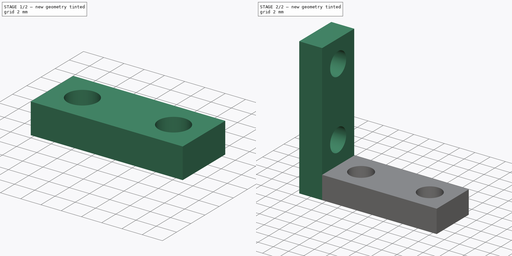
[diagram: build sequence overview — one tinted view per stage of 2, left to right]
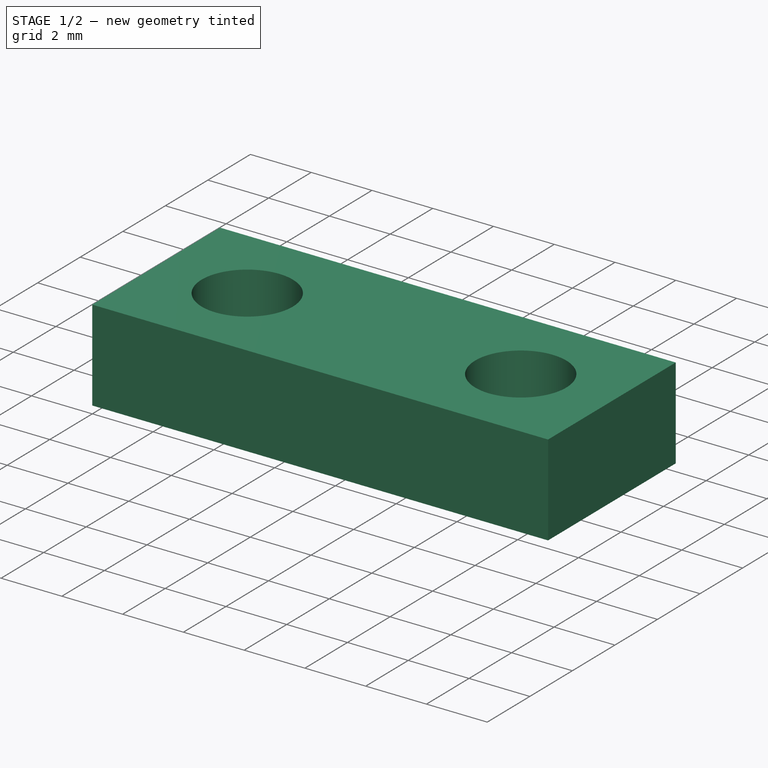
[diagram: stage 1 of 2 — iso view after this stage's code; geometry added in this stage tinted green]
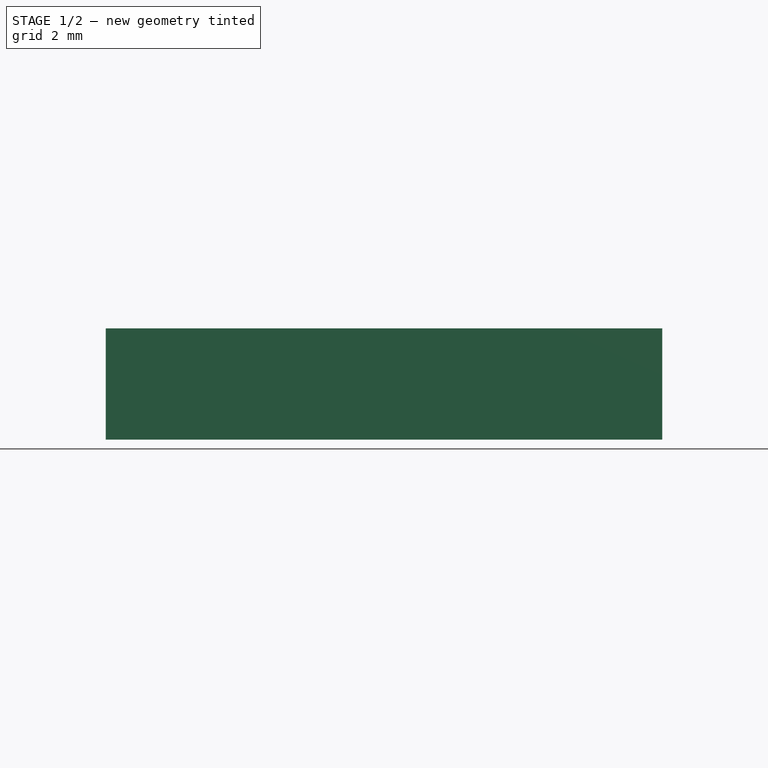
[diagram: stage 1 of 2 — front view after this stage's code; geometry added in this stage tinted green]
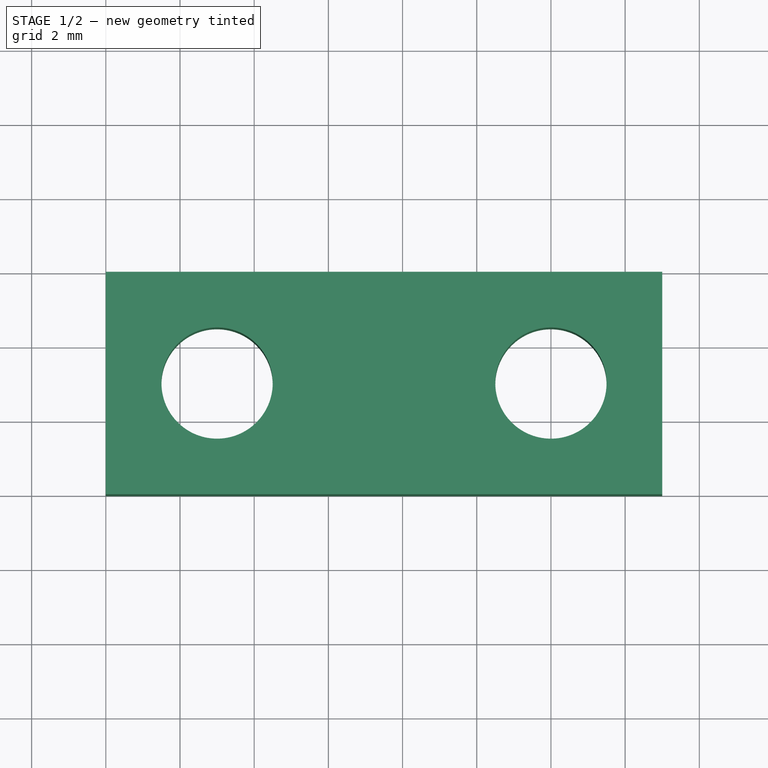
[diagram: stage 1 of 2 — top view after this stage's code; geometry added in this stage tinted green]
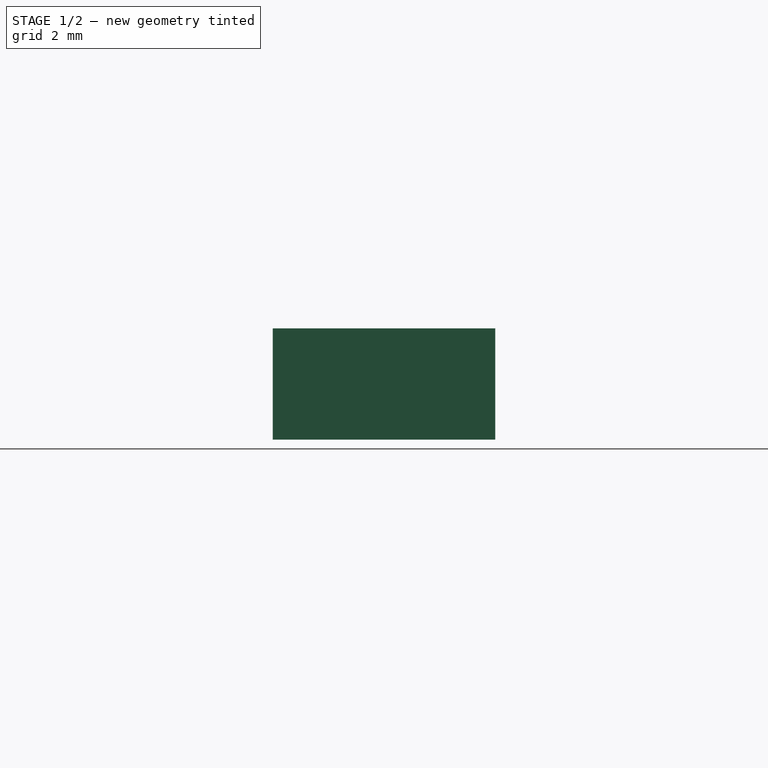
[diagram: stage 1 of 2 — right view after this stage's code; geometry added in this stage tinted green]
FCSTD DOCUMENT  (FreeCAD 0.16R6707 (Git))
Label: équerre
License: All rights reserved
LicenseURL: http://en.wikipedia.org/wiki/All_rights_reserved
objects: Sketcher::SketchObject×2, PartDesign::Pad×2
note: 6 computed .brp shape members not serialized (recipe doc carries the construction recipe); baked Part::Feature solids carry a one-line shape summary decoded from their .brp

FEATURE [Sketcher::SketchObject] Sketch
  sketch-geometry (8):
    g0: GeomPoint [constr] X=3 Y=3 Z=0
    g1: GeomPoint [constr] X=12 Y=3 Z=0
    g2: Circle CenterX=3 CenterY=3 CenterZ=0 NormalX=0 NormalY=0 NormalZ=1 Radius=1.5
    g3: Circle CenterX=12 CenterY=3 CenterZ=0 NormalX=0 NormalY=0 NormalZ=1 Radius=1.5
    g4: LineSegment StartX=0 StartY=0 StartZ=0 EndX=15 EndY=0 EndZ=0
    g5: LineSegment StartX=15 StartY=0 StartZ=0 EndX=15 EndY=6 EndZ=0
    g6: LineSegment StartX=15 StartY=6 StartZ=0 EndX=0 EndY=6 EndZ=0
    g7: LineSegment StartX=0 StartY=6 StartZ=0 EndX=0 EndY=0 EndZ=0
  constraints (19):
    c: DistanceX(g0) = 3
    c: DistanceX(g0,g1) = 9
    c: DistanceY(g0,g1) = 0
    c: Coincident(g2,g0)
    c: Coincident(g3,g1)
    c: Radius(g2) = 1.5
    c: Equal(g2,g3)
    c: DistanceY(g-1,g0) = 3
    c: Coincident(g4,g5)
    c: Coincident(g5,g6)
    c: Coincident(g6,g7)
    c: Coincident(g7,g4)
    c: Horizontal(g4)
    c: Horizontal(g6)
    c: Vertical(g5)
    c: Vertical(g7)
    c: Coincident(g4,g-1)
    c: Distance(g6) = 15
    c: Distance(g5) = 6
FEATURE [PartDesign::Pad] Pad
  Length = 3
  Length2 = 100
  Sketch = -> Sketch
  Type = 0
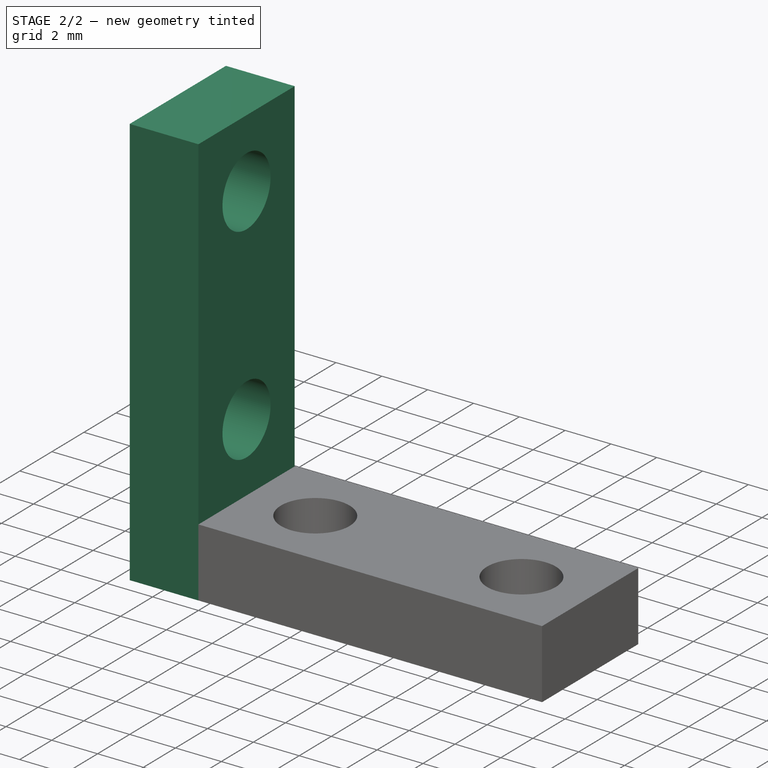
[diagram: stage 2 of 2 — iso view after this stage's code; geometry added in this stage tinted green]
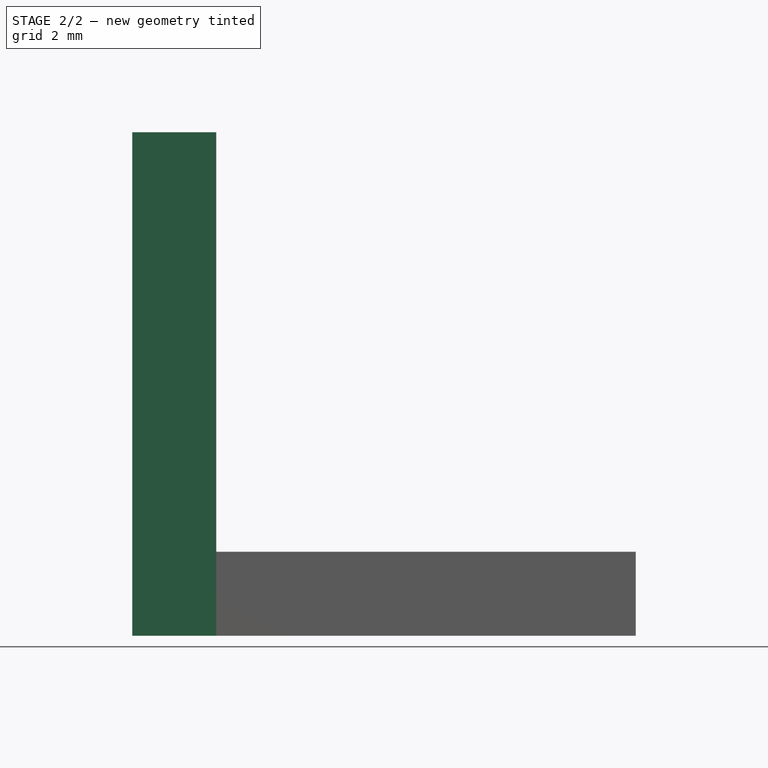
[diagram: stage 2 of 2 — front view after this stage's code; geometry added in this stage tinted green]
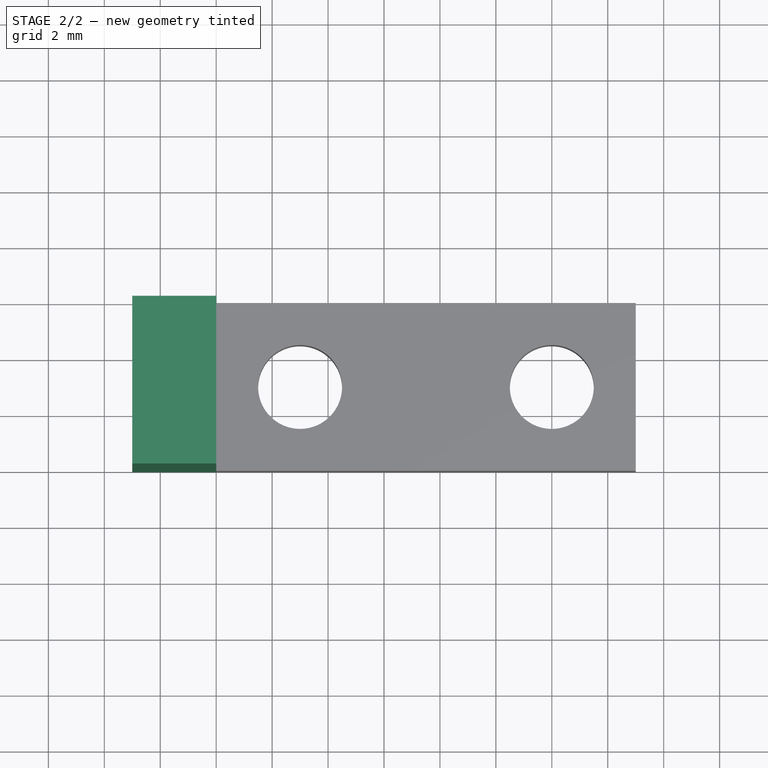
[diagram: stage 2 of 2 — top view after this stage's code; geometry added in this stage tinted green]
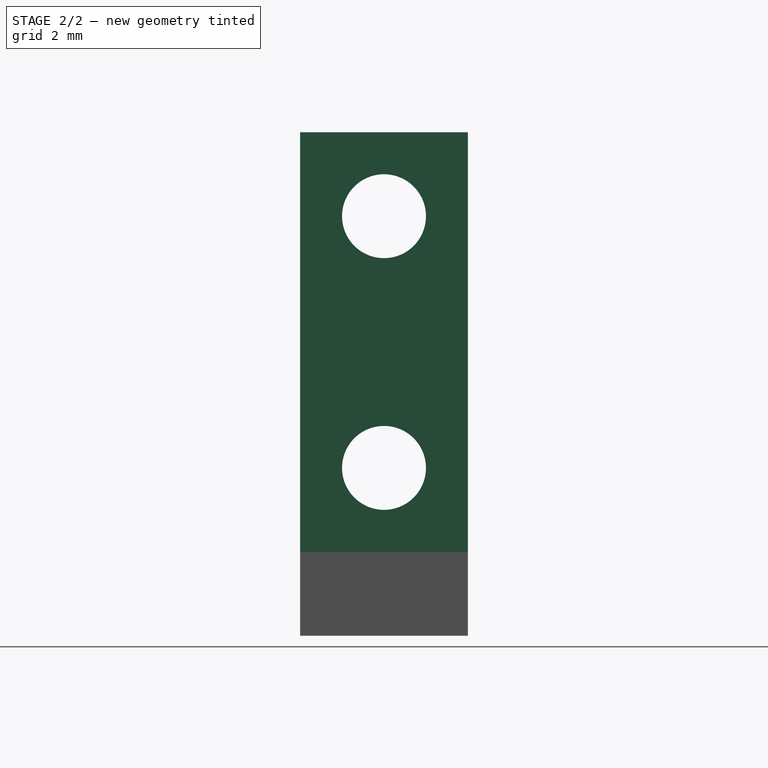
[diagram: stage 2 of 2 — right view after this stage's code; geometry added in this stage tinted green]
FEATURE [Sketcher::SketchObject] Sketch001
  Placement = pos=(0,0,0) rot=(0.57735,-0.57735,-0.57735;2.0944rad)
  Support = -> Pad [Face4]
  sketch-geometry (6):
    g0: LineSegment StartX=0 StartY=0 StartZ=0 EndX=-6 EndY=0 EndZ=0
    g1: LineSegment StartX=-6 StartY=0 StartZ=0 EndX=-6 EndY=18 EndZ=0
    g2: LineSegment StartX=-6 StartY=18 StartZ=0 EndX=0 EndY=18 EndZ=0
    g3: LineSegment StartX=0 StartY=18 StartZ=0 EndX=0 EndY=0 EndZ=0
    g4: Circle CenterX=-3 CenterY=6 CenterZ=0 NormalX=0 NormalY=0 NormalZ=1 Radius=1.5
    g5: Circle CenterX=-3 CenterY=15 CenterZ=0 NormalX=0 NormalY=0 NormalZ=1 Radius=1.5
  constraints (17):
    c: Coincident(g0,g1)
    c: Coincident(g1,g2)
    c: Coincident(g2,g3)
    c: Coincident(g3,g0)
    c: Horizontal(g0)
    c: Horizontal(g2)
    c: Vertical(g1)
    c: Vertical(g3)
    c: Coincident(g0,g-1)
    c: Distance(g0) = 6
    c: Distance(g1) = 18
    c: DistanceY(g4) = 6
    c: DistanceY(g4,g5) = 9
    c: DistanceX(g4,g5) = 0
    c: DistanceX(g4) = -3
    c: Radius(g5) = 1.5
    c: Equal(g5,g4)
FEATURE [PartDesign::Pad] Pad001
  Length = 3
  Length2 = 100
  Sketch = -> Sketch001
  Type = 0
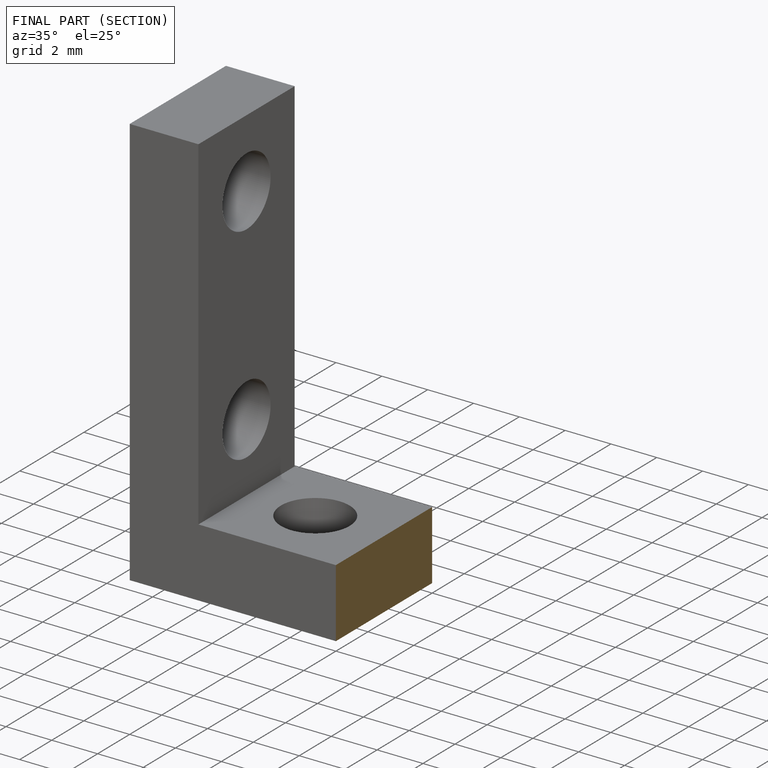
[diagram: finished part — half-section view (interior)]
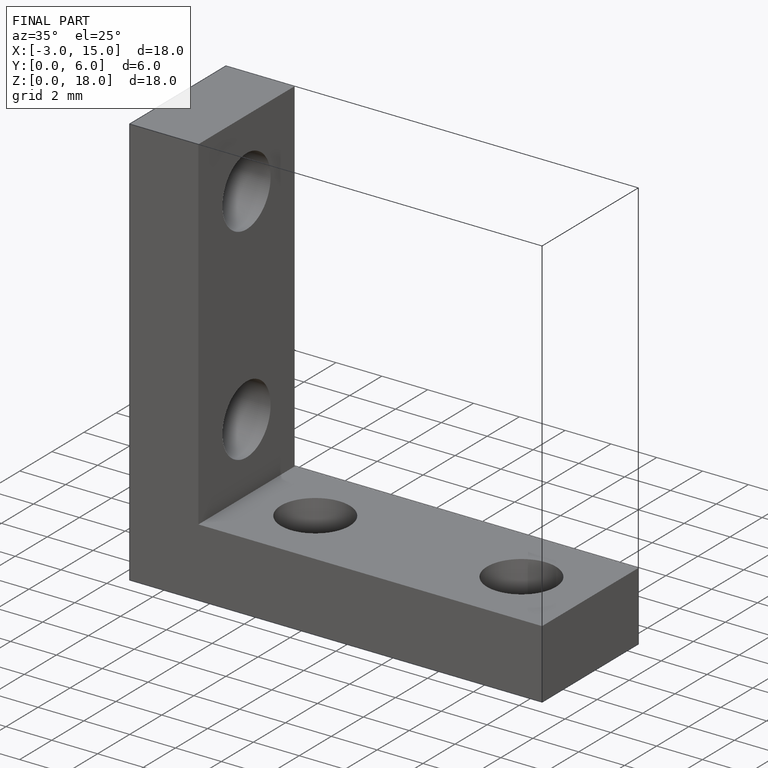
[diagram: finished part — iso view with bounding-box wireframe]
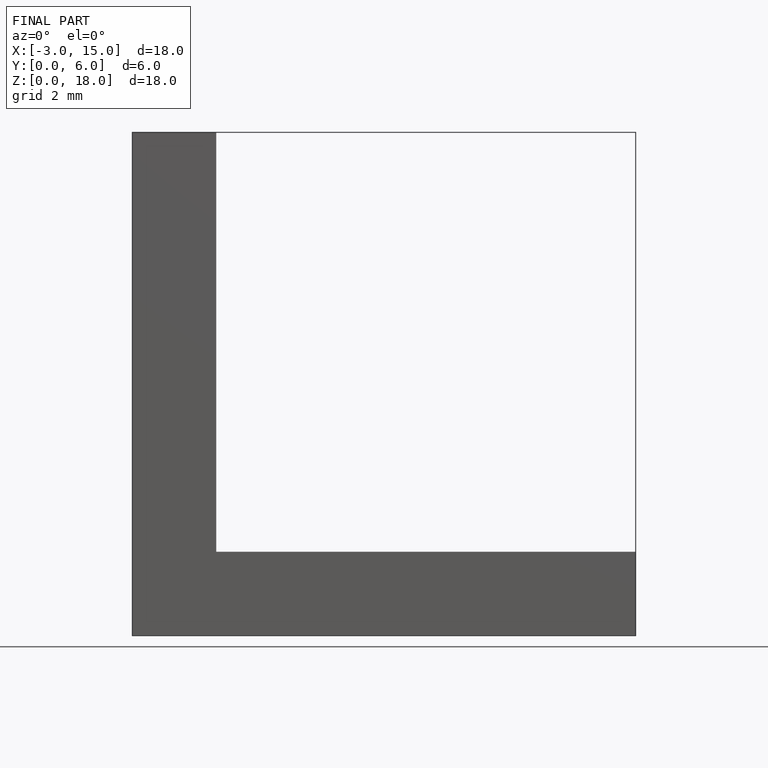
[diagram: finished part — front view with bounding-box wireframe]
